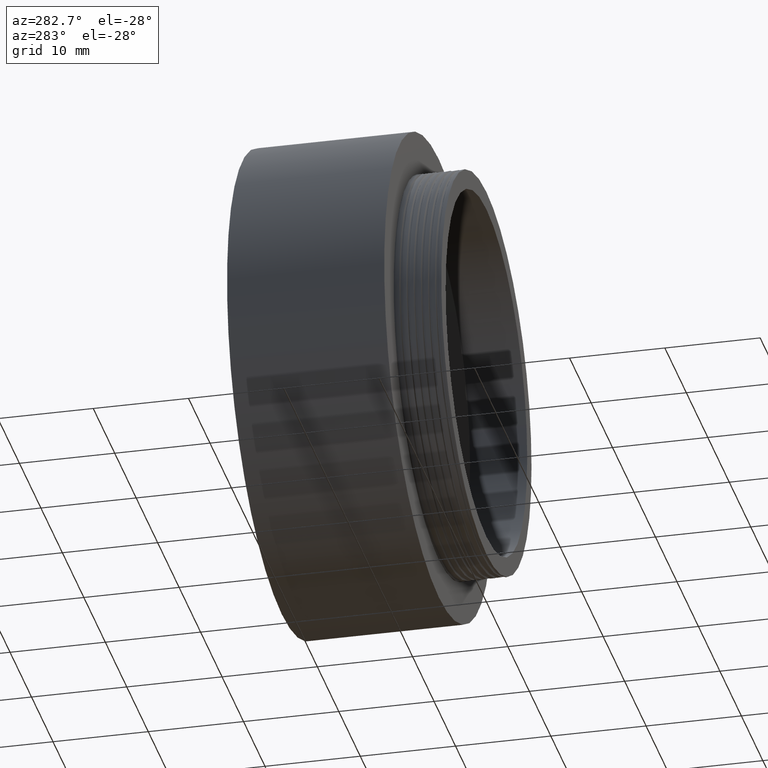
[diagram: clean part render]
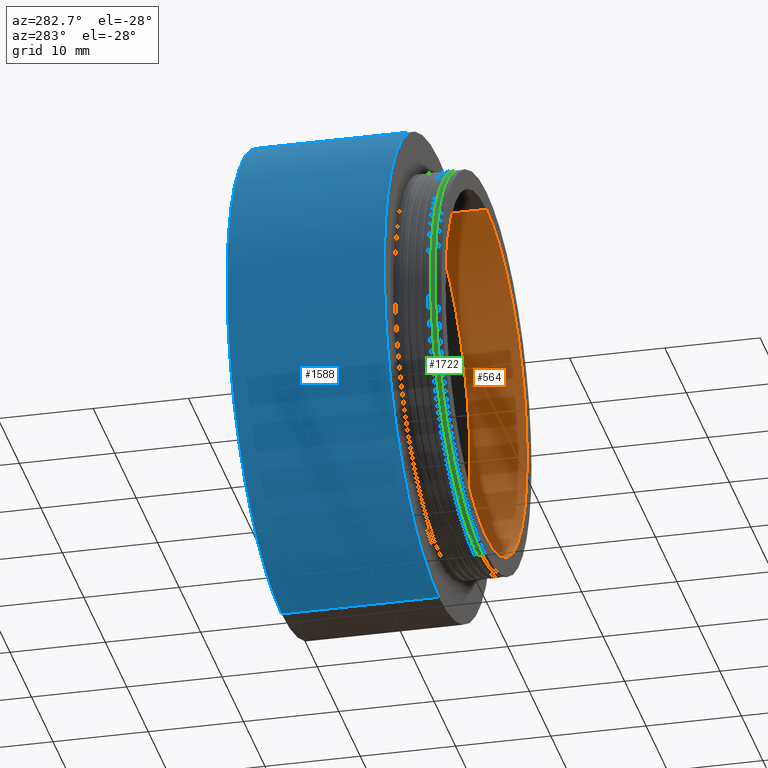
[diagram: same view with three faces highlighted in distinct colors, each labeled with its STEP entity id]
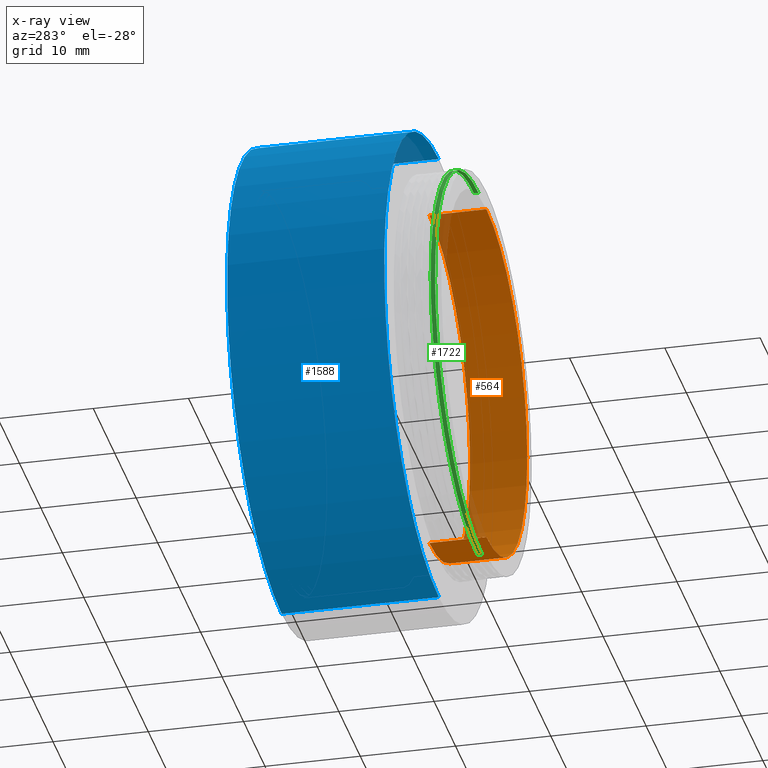
[diagram: x-ray of the same camera — body ghosted, the three highlighted faces saturated]
A machine part, auxiliary view with three faces highlighted in distinct colors.
The next image is the same camera in x-ray (body ghosted, the three faces saturated) — at least one of them is partly hidden behind the body in this view.
Their STEP definitions:

[orange] entity #564 — the highlighted cylindrical surface (partial cylindrical patch) has radius 19 mm, axis along (-0, -1, -0).
#14 = ORIENTED_EDGE ( 'NONE', *, *, #6508, .T. ) ;
#564 = ADVANCED_FACE ( 'NONE', ( #2532 ), #3105, .F. ) ;
#745 = EDGE_CURVE ( 'NONE', #4824, #3345, #3639, .T. ) ;
#764 = AXIS2_PLACEMENT_3D ( 'NONE', #3573, #3079, #5760 ) ;
#859 = CARTESIAN_POINT ( 'NONE',  ( 2.326828918379970970E-15, 0.000000000000000000, 19.00000000000000000 ) ) ;
#950 = CARTESIAN_POINT ( 'NONE',  ( 2.326828918379970970E-15, 6.000000000000000000, 19.00000000000000000 ) ) ;
#1443 = ORIENTED_EDGE ( 'NONE', *, *, #745, .F. ) ;
#1713 = CARTESIAN_POINT ( 'NONE',  ( 2.326828918379970970E-15, 5.817072295949926440E-16, 19.00000000000000000 ) ) ;
#2238 = CARTESIAN_POINT ( 'NONE',  ( 0.000000000000000000, 5.817072295949926440E-16, -19.00000000000000000 ) ) ;
#2418 = DIRECTION ( 'NONE',  ( 0.000000000000000000, 0.000000000000000000, -1.000000000000000000 ) ) ;
#2526 = DIRECTION ( 'NONE',  ( -0.000000000000000000, -1.000000000000000000, -0.000000000000000000 ) ) ;
#2532 = FACE_OUTER_BOUND ( 'NONE', #4684, .T. ) ;
#2789 = LINE ( 'NONE', #4002, #2813 ) ;
#2813 = VECTOR ( 'NONE', #6118, 1000.000000000000000 ) ;
#2815 = VECTOR ( 'NONE', #3029, 1000.000000000000000 ) ;
#2916 = DIRECTION ( 'NONE',  ( 0.000000000000000000, 0.000000000000000000, -1.000000000000000000 ) ) ;
#2922 = CIRCLE ( 'NONE', #764, 19.00000000000000000 ) ;
#3029 = DIRECTION ( 'NONE',  ( -0.000000000000000000, -1.000000000000000000, -0.000000000000000000 ) ) ;
#3079 = DIRECTION ( 'NONE',  ( -0.000000000000000000, -1.000000000000000000, -0.000000000000000000 ) ) ;
#3105 = CYLINDRICAL_SURFACE ( 'NONE', #5907, 19.00000000000000000 ) ;
#3345 = VERTEX_POINT ( 'NONE', #1713 ) ;
#3573 = CARTESIAN_POINT ( 'NONE',  ( 0.000000000000000000, 6.000000000000000000, 0.000000000000000000 ) ) ;
#3639 = LINE ( 'NONE', #859, #2815 ) ;
#3730 = ORIENTED_EDGE ( 'NONE', *, *, #6234, .F. ) ;
#4002 = CARTESIAN_POINT ( 'NONE',  ( 0.000000000000000000, 0.000000000000000000, -19.00000000000000000 ) ) ;
#4025 = CARTESIAN_POINT ( 'NONE',  ( 0.000000000000000000, 0.000000000000000000, 0.000000000000000000 ) ) ;
#4684 = EDGE_LOOP ( 'NONE', ( #1443, #3730, #14, #4763 ) ) ;
#4763 = ORIENTED_EDGE ( 'NONE', *, *, #6928, .T. ) ;
#4824 = VERTEX_POINT ( 'NONE', #950 ) ;
#5154 = VERTEX_POINT ( 'NONE', #2238 ) ;
#5550 = CARTESIAN_POINT ( 'NONE',  ( 0.000000000000000000, 6.000000000000000000, -19.00000000000000000 ) ) ;
#5751 = DIRECTION ( 'NONE',  ( -0.000000000000000000, -1.000000000000000000, -0.000000000000000000 ) ) ;
#5760 = DIRECTION ( 'NONE',  ( 0.000000000000000000, 0.000000000000000000, -1.000000000000000000 ) ) ;
#5793 = AXIS2_PLACEMENT_3D ( 'NONE', #6849, #2526, #2916 ) ;
#5907 = AXIS2_PLACEMENT_3D ( 'NONE', #4025, #5751, #2418 ) ;
#6118 = DIRECTION ( 'NONE',  ( -0.000000000000000000, -1.000000000000000000, -0.000000000000000000 ) ) ;
#6234 = EDGE_CURVE ( 'NONE', #6602, #4824, #2922, .T. ) ;
#6476 = CIRCLE ( 'NONE', #5793, 19.00000000000000000 ) ;
#6508 = EDGE_CURVE ( 'NONE', #6602, #5154, #2789, .T. ) ;
#6602 = VERTEX_POINT ( 'NONE', #5550 ) ;
#6849 = CARTESIAN_POINT ( 'NONE',  ( 0.000000000000000000, 5.817072295949926440E-16, 0.000000000000000000 ) ) ;
#6928 = EDGE_CURVE ( 'NONE', #5154, #3345, #6476, .T. ) ;

[blue] entity #1588 — the highlighted cylindrical surface (partial cylindrical patch) has radius 25.4 mm, axis along (-0, -1, -0).
#125 = CARTESIAN_POINT ( 'NONE',  ( 3.110602869834276865E-15, 21.50000000000000000, 25.39999999999999858 ) ) ;
#267 = VERTEX_POINT ( 'NONE', #1237 ) ;
#935 = LINE ( 'NONE', #6936, #6352 ) ;
#1007 = EDGE_CURVE ( 'NONE', #1889, #1834, #5674, .T. ) ;
#1045 = CARTESIAN_POINT ( 'NONE',  ( 3.110602869834276865E-15, 0.000000000000000000, 25.39999999999999858 ) ) ;
#1233 = EDGE_LOOP ( 'NONE', ( #3283, #2939, #3478, #3578 ) ) ;
#1237 = CARTESIAN_POINT ( 'NONE',  ( 0.000000000000000000, 5.000000000000000888, -25.39999999999999858 ) ) ;
#1576 = FACE_OUTER_BOUND ( 'NONE', #1233, .T. ) ;
#1588 = ADVANCED_FACE ( 'NONE', ( #1576 ), #2781, .T. ) ;
#1609 = DIRECTION ( 'NONE',  ( -0.000000000000000000, -1.000000000000000000, -0.000000000000000000 ) ) ;
#1629 = EDGE_CURVE ( 'NONE', #2261, #267, #1903, .T. ) ;
#1635 = EDGE_CURVE ( 'NONE', #1889, #2261, #2745, .T. ) ;
#1780 = AXIS2_PLACEMENT_3D ( 'NONE', #3755, #1609, #6037 ) ;
#1834 = VERTEX_POINT ( 'NONE', #6647 ) ;
#1889 = VERTEX_POINT ( 'NONE', #125 ) ;
#1903 = CIRCLE ( 'NONE', #1780, 25.39999999999999858 ) ;
#2131 = DIRECTION ( 'NONE',  ( 0.000000000000000000, 0.000000000000000000, -1.000000000000000000 ) ) ;
#2261 = VERTEX_POINT ( 'NONE', #5627 ) ;
#2745 = LINE ( 'NONE', #1045, #4174 ) ;
#2781 = CYLINDRICAL_SURFACE ( 'NONE', #4992, 25.39999999999999858 ) ;
#2939 = ORIENTED_EDGE ( 'NONE', *, *, #1007, .T. ) ;
#3141 = CARTESIAN_POINT ( 'NONE',  ( 0.000000000000000000, 21.50000000000000000, 0.000000000000000000 ) ) ;
#3190 = CARTESIAN_POINT ( 'NONE',  ( 0.000000000000000000, 0.000000000000000000, 0.000000000000000000 ) ) ;
#3283 = ORIENTED_EDGE ( 'NONE', *, *, #1635, .F. ) ;
#3478 = ORIENTED_EDGE ( 'NONE', *, *, #6182, .T. ) ;
#3578 = ORIENTED_EDGE ( 'NONE', *, *, #1629, .F. ) ;
#3755 = CARTESIAN_POINT ( 'NONE',  ( 0.000000000000000000, 5.000000000000000888, 0.000000000000000000 ) ) ;
#3888 = DIRECTION ( 'NONE',  ( -0.000000000000000000, -1.000000000000000000, -0.000000000000000000 ) ) ;
#4174 = VECTOR ( 'NONE', #3888, 1000.000000000000000 ) ;
#4388 = DIRECTION ( 'NONE',  ( -0.000000000000000000, -1.000000000000000000, -0.000000000000000000 ) ) ;
#4992 = AXIS2_PLACEMENT_3D ( 'NONE', #3190, #4388, #5944 ) ;
#5262 = DIRECTION ( 'NONE',  ( -0.000000000000000000, -1.000000000000000000, -0.000000000000000000 ) ) ;
#5394 = DIRECTION ( 'NONE',  ( -0.000000000000000000, -1.000000000000000000, -0.000000000000000000 ) ) ;
#5627 = CARTESIAN_POINT ( 'NONE',  ( 3.110602869834276865E-15, 5.000000000000000888, 25.39999999999999858 ) ) ;
#5674 = CIRCLE ( 'NONE', #6583, 25.39999999999999858 ) ;
#5944 = DIRECTION ( 'NONE',  ( 0.000000000000000000, 0.000000000000000000, -1.000000000000000000 ) ) ;
#6037 = DIRECTION ( 'NONE',  ( 0.000000000000000000, 0.000000000000000000, -1.000000000000000000 ) ) ;
#6182 = EDGE_CURVE ( 'NONE', #1834, #267, #935, .T. ) ;
#6352 = VECTOR ( 'NONE', #5262, 1000.000000000000000 ) ;
#6583 = AXIS2_PLACEMENT_3D ( 'NONE', #3141, #5394, #2131 ) ;
#6647 = CARTESIAN_POINT ( 'NONE',  ( 0.000000000000000000, 21.50000000000000000, -25.39999999999999858 ) ) ;
#6936 = CARTESIAN_POINT ( 'NONE',  ( 0.000000000000000000, 0.000000000000000000, -25.39999999999999858 ) ) ;

[green] entity #1722 — the highlighted cylindrical surface (partial cylindrical patch) has radius 21 mm, axis along (-0, -1, -0).
#30 = CARTESIAN_POINT ( 'NONE',  ( -1.371917206462944052E-06, 0.8400433606094037664, 20.99999999999990763 ) ) ;
#104 = CARTESIAN_POINT ( 'NONE',  ( -20.95778051501076433, 0.6428362725427828606, -1.732116755621182502 ) ) ;
#138 = CARTESIAN_POINT ( 'NONE',  ( -8.264904592299023633, 0.7917569719344342838, 19.42686546129168690 ) ) ;
#174 = CARTESIAN_POINT ( 'NONE',  ( -20.00029402727296812, 0.6160802091080449516, -6.402205789433848437 ) ) ;
#597 = CARTESIAN_POINT ( 'NONE',  ( -20.17682991514357482, 0.6873435345049681011, 6.069491948809591086 ) ) ;
#632 = CARTESIAN_POINT ( 'NONE',  ( -6.227736387312419630, 0.5026269996722116939, -20.09496780458490761 ) ) ;
#634 = VERTEX_POINT ( 'NONE', #1318 ) ;
#667 = CARTESIAN_POINT ( 'NONE',  ( -19.92076900177369581, 0.6146911675098549743, -6.646340969946742838 ) ) ;
#693 = CARTESIAN_POINT ( 'NONE',  ( 1.285879139104720831E-15, 0.9375000000000000000, -21.00000000000000000 ) ) ;
#703 = CARTESIAN_POINT ( 'NONE',  ( -20.57660190434790692, 0.6283723895366619683, -4.272170495910649457 ) ) ;
#736 = CARTESIAN_POINT ( 'NONE',  ( -19.99865818422478370, 0.6160512024866783287, -6.407314328576632967 ) ) ;
#983 = EDGE_CURVE ( 'NONE', #634, #1061, #6464, .T. ) ;
#1061 = VERTEX_POINT ( 'NONE', #7031 ) ;
#1124 = CARTESIAN_POINT ( 'NONE',  ( -15.75996191694671289, 0.5676474637114731214, -14.10649944849024351 ) ) ;
#1157 = CARTESIAN_POINT ( 'NONE',  ( -20.00016163091393295, 0.6160778585007468111, -6.402619839718934891 ) ) ;
#1230 = CARTESIAN_POINT ( 'NONE',  ( -20.42449321500383519, 0.6247051319383214452, -4.908311544663050974 ) ) ;
#1252 = CARTESIAN_POINT ( 'NONE',  ( 1.285879139104720831E-15, 0.9375000000000000000, -21.00000000000000000 ) ) ;
#1265 = CARTESIAN_POINT ( 'NONE',  ( -1.260889732168815947, 0.4728517883781150344, -21.00000000236397568 ) ) ;
#1318 = CARTESIAN_POINT ( 'NONE',  ( -3.857637417314162689E-15, 1.312500000000000000, 21.00000000000000000 ) ) ;
#1564 = CARTESIAN_POINT ( 'NONE',  ( 2.571758278209441661E-15, 0.000000000000000000, 21.00000000000000000 ) ) ;
#1652 = CARTESIAN_POINT ( 'NONE',  ( -14.00778444053082517, 0.7528398396219392330, 15.68311669140030595 ) ) ;
#1722 = ADVANCED_FACE ( 'NONE', ( #2176 ), #2208, .T. ) ;
#1749 = CARTESIAN_POINT ( 'NONE',  ( -8.698484809835006715, 0.9843750000000000000, -20.99999999999998934 ) ) ;
#1761 = CARTESIAN_POINT ( 'NONE',  ( -4.116518364991137879, 0.8164110757697266019, 20.70666622422895031 ) ) ;
#1796 = CARTESIAN_POINT ( 'NONE',  ( -15.55005966465864020, 0.7405173064958514573, 14.15534593409896935 ) ) ;
#1843 = LINE ( 'NONE', #2950, #6127 ) ;
#2102 = ORIENTED_EDGE ( 'NONE', *, *, #2244, .T. ) ;
#2176 = FACE_OUTER_BOUND ( 'NONE', #6934, .T. ) ;
#2189 = CARTESIAN_POINT ( 'NONE',  ( -19.58889120693740793, 0.6093450240016865527, -7.574620007402135258 ) ) ;
#2208 = CYLINDRICAL_SURFACE ( 'NONE', #5666, 21.00000000000000000 ) ;
#2223 = CARTESIAN_POINT ( 'NONE',  ( -19.75291090759981572, 0.6119134455333478106, -7.130735755857595670 ) ) ;
#2244 = EDGE_CURVE ( 'NONE', #3010, #1061, #4989, .T. ) ;
#2249 = CARTESIAN_POINT ( 'NONE',  ( -21.00000000000000355, 1.171875000000000222, 8.698484809834994280 ) ) ;
#2258 = CARTESIAN_POINT ( 'NONE',  ( -19.10517214117051665, 0.6024733346205427553, -8.740166208446348506 ) ) ;
#2293 = CARTESIAN_POINT ( 'NONE',  ( -20.55174541022251944, 0.6784831115899794263, 4.540883568820563987 ) ) ;
#2328 = CARTESIAN_POINT ( 'NONE',  ( -20.84326469710045160, 0.6374379598388928425, -2.684455893239775737 ) ) ;
#2410 =( BOUNDED_CURVE ( )  B_SPLINE_CURVE ( 2, ( #1252, #1749, #4356, #6648, #5579, #2249, #4501, #4466, #6152 ),
 .UNSPECIFIED., .F., .F. ) 
 B_SPLINE_CURVE_WITH_KNOTS ( ( 3, 2, 2, 2, 3 ),
 ( 0.1785714285714286031, 0.1964285714285714524, 0.2142857142857143016, 0.2321428571428572063, 0.2500000000000000555 ),
 .UNSPECIFIED. ) 
 CURVE ( )  GEOMETRIC_REPRESENTATION_ITEM ( )  RATIONAL_B_SPLINE_CURVE ( ( 0.9999999999999998890, 0.9238795325112868495, 1.000000000000000000, 0.9238795325112867385, 1.000000000000000000, 0.9238795325112867385, 1.000000000000000000, 0.9238795325112865164, 1.000000000000000222 ) ) 
 REPRESENTATION_ITEM ( '' )  );
#2651 = CARTESIAN_POINT ( 'NONE',  ( 0.000000000000000000, 0.000000000000000000, 0.000000000000000000 ) ) ;
#2758 = CARTESIAN_POINT ( 'NONE',  ( -18.83381687574515340, 0.5990229836677976039, -9.310502123185433021 ) ) ;
#2794 = CARTESIAN_POINT ( 'NONE',  ( -21.02366789524423751, 0.6553639530561119475, 0.4839223087909608201 ) ) ;
#2834 = ORIENTED_EDGE ( 'NONE', *, *, #983, .F. ) ;
#2864 = CARTESIAN_POINT ( 'NONE',  ( -11.96874571956499977, 0.5391162553104459354, -17.43900376209204950 ) ) ;
#2901 = CARTESIAN_POINT ( 'NONE',  ( -17.35144614635134630, 0.5817067566277490664, -12.09533145264587795 ) ) ;
#2950 = CARTESIAN_POINT ( 'NONE',  ( 0.000000000000000000, 0.000000000000000000, -21.00000000000000000 ) ) ;
#3010 = VERTEX_POINT ( 'NONE', #4323 ) ;
#3124 = ORIENTED_EDGE ( 'NONE', *, *, #3125, .F. ) ;
#3125 = EDGE_CURVE ( 'NONE', #3624, #634, #2410, .T. ) ;
#3304 = CARTESIAN_POINT ( 'NONE',  ( -17.44127420311606969, 0.7231154162476891578, 11.73972544509317117 ) ) ;
#3333 = CARTESIAN_POINT ( 'NONE',  ( -20.00064542215631747, 0.6160864429733147185, -6.401107973445030908 ) ) ;
#3403 = CARTESIAN_POINT ( 'NONE',  ( -19.23735006521901170, 0.7019324602066131513, 8.465232539838600800 ) ) ;
#3440 = CARTESIAN_POINT ( 'NONE',  ( -2.523809453199696851, 0.4803517704134319111, -20.88594784587103703 ) ) ;
#3454 = DIRECTION ( 'NONE',  ( -0.000000000000000000, -1.000000000000000000, -0.000000000000000000 ) ) ;
#3624 = VERTEX_POINT ( 'NONE', #693 ) ;
#3901 = CARTESIAN_POINT ( 'NONE',  ( -19.47287523116266428, 0.6076295193667629047, -7.868078368021506286 ) ) ;
#3970 = CARTESIAN_POINT ( 'NONE',  ( 3.937195474107411048E-08, 0.4653124989089484909, -21.00000000000000000 ) ) ;
#3975 = CARTESIAN_POINT ( 'NONE',  ( -2.018728675883716850, 0.8283078135838201073, 21.00000000753210116 ) ) ;
#4323 = CARTESIAN_POINT ( 'NONE',  ( 3.937195474107411048E-08, 0.4653124989089484909, -21.00000000000000000 ) ) ;
#4356 = CARTESIAN_POINT ( 'NONE',  ( -14.84924240491749714, 1.031250000000000000, -14.84924240491749892 ) ) ;
#4366 = CARTESIAN_POINT ( 'NONE',  ( -9.770074927235773643, 0.5246443398256949164, -18.75940729940142759 ) ) ;
#4424 = EDGE_CURVE ( 'NONE', #3624, #3010, #1843, .T. ) ;
#4441 = CARTESIAN_POINT ( 'NONE',  ( -16.23469418377435147, 0.7345724218210012424, 13.35866400931519671 ) ) ;
#4466 = CARTESIAN_POINT ( 'NONE',  ( -8.698484809834987175, 1.265625000000000444, 21.00000000000001776 ) ) ;
#4480 = CARTESIAN_POINT ( 'NONE',  ( -17.96330709871271836, 0.7176032953492266220, 10.91747861141681319 ) ) ;
#4501 = CARTESIAN_POINT ( 'NONE',  ( -14.84924240491750247, 1.218750000000000000, 14.84924240491749714 ) ) ;
#4513 = CARTESIAN_POINT ( 'NONE',  ( -20.97465390075524283, 0.6624933208655515715, 1.748644256479715109 ) ) ;
#4691 = ORIENTED_EDGE ( 'NONE', *, *, #4424, .T. ) ;
#4950 = CARTESIAN_POINT ( 'NONE',  ( -5.006741568116087393, 0.4952363084666579485, -20.43342777036206925 ) ) ;
#4989 = B_SPLINE_CURVE_WITH_KNOTS ( 'NONE', 3,
 ( #3970, #1265, #3440, #4950, #632, #4366, #2864, #1124, #2901, #2758, #2258, #3901, #2189, #2223, #6694, #667, #6051, #5024, #5058, #736, #1157, #174, #3333, #5517, #5591, #1230, #703, #2328, #104, #2794, #4513, #2293, #597, #3403, #6087, #4480, #3304, #4441, #1796, #1652, #6553, #6661, #138, #1761, #3975, #30 ),
 .UNSPECIFIED., .F., .F.,
 ( 4, 2, 2, 2, 2, 2, 2, 1, 1, 1, 1, 1, 2, 2, 1, 2, 2, 2, 2, 2, 2, 2, 2, 2, 2, 4 ),
 ( 0.03749871249491558423, 0.04179878285828740603, 0.04609885322165922783, 0.05469899394840287143, 0.06329913467514651504, 0.06544916985683241206, 0.06652418744767536751, 0.06706169624309683830, 0.06733045064080757369, 0.06746482783966294139, 0.06753201643909062524, 0.06756561073880447410, 0.06757400931373293285, 0.06758240788866139159, 0.06759920503851832296, 0.07189927540189051947, 0.07619934576526271597, 0.08049941612863491247, 0.08479948649200710897, 0.08909955685537931935, 0.09124959203706539679, 0.09339962721875150198, 0.09554966240043759329, 0.09769969758212369848, 0.1019997679454958811, 0.1062998383088680776 ),
 .UNSPECIFIED. ) ;
#5024 = CARTESIAN_POINT ( 'NONE',  ( -19.98509286905542481, 0.6158112820295000844, -6.449553734637810010 ) ) ;
#5058 = CARTESIAN_POINT ( 'NONE',  ( -19.99489750135753496, 0.6159845614677387227, -6.419049889022001132 ) ) ;
#5505 = DIRECTION ( 'NONE',  ( -0.000000000000000000, -1.000000000000000000, -0.000000000000000000 ) ) ;
#5517 = CARTESIAN_POINT ( 'NONE',  ( -20.06101585919358854, 0.6171579060634102554, -6.212444123115075989 ) ) ;
#5579 = CARTESIAN_POINT ( 'NONE',  ( -21.00000000000000000, 1.125000000000000222, -2.571758278209441661E-15 ) ) ;
#5591 = CARTESIAN_POINT ( 'NONE',  ( -20.16694539402210395, 0.6191016718471893387, -5.877564017834341570 ) ) ;
#5666 = AXIS2_PLACEMENT_3D ( 'NONE', #2651, #5505, #6613 ) ;
#6051 = CARTESIAN_POINT ( 'NONE',  ( -19.96383643308254818, 0.6154379986686420168, -6.515209614668508564 ) ) ;
#6087 = CARTESIAN_POINT ( 'NONE',  ( -18.86130793060160471, 0.7070118173286882302, 9.280237297635821392 ) ) ;
#6127 = VECTOR ( 'NONE', #3454, 1000.000000000000000 ) ;
#6133 = VECTOR ( 'NONE', #6398, 1000.000000000000000 ) ;
#6152 = CARTESIAN_POINT ( 'NONE',  ( -3.857637417314162689E-15, 1.312500000000000000, 21.00000000000000000 ) ) ;
#6398 = DIRECTION ( 'NONE',  ( -0.000000000000000000, -1.000000000000000000, -0.000000000000000000 ) ) ;
#6464 = LINE ( 'NONE', #1564, #6133 ) ;
#6553 = CARTESIAN_POINT ( 'NONE',  ( -13.14996793376612594, 0.7592180857261077165, 16.41422988440542241 ) ) ;
#6613 = DIRECTION ( 'NONE',  ( 0.000000000000000000, 0.000000000000000000, -1.000000000000000000 ) ) ;
#6648 = CARTESIAN_POINT ( 'NONE',  ( -21.00000000000000355, 1.078125000000000222, -8.698484809835001386 ) ) ;
#6661 = CARTESIAN_POINT ( 'NONE',  ( -10.31489577637443666, 0.7789996059132352491, 18.43901631192060009 ) ) ;
#6694 = CARTESIAN_POINT ( 'NONE',  ( -19.83242000637992319, 0.6131964474439972612, -6.907869578286511825 ) ) ;
#6934 = EDGE_LOOP ( 'NONE', ( #2834, #3124, #4691, #2102 ) ) ;
#7031 = CARTESIAN_POINT ( 'NONE',  ( -1.371917206462944052E-06, 0.8400433606094037664, 20.99999999999990763 ) ) ;